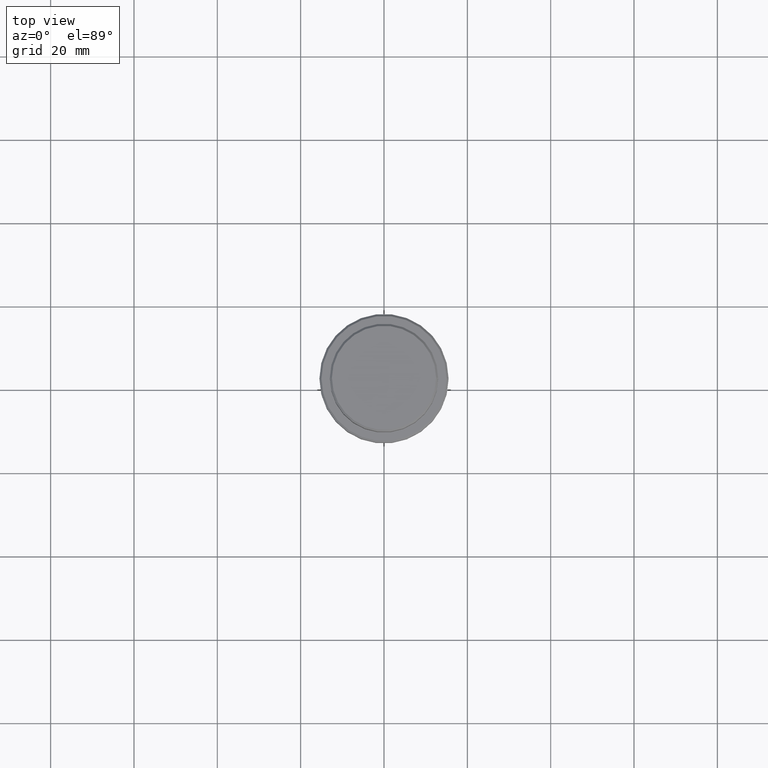
[diagram: clean part render]
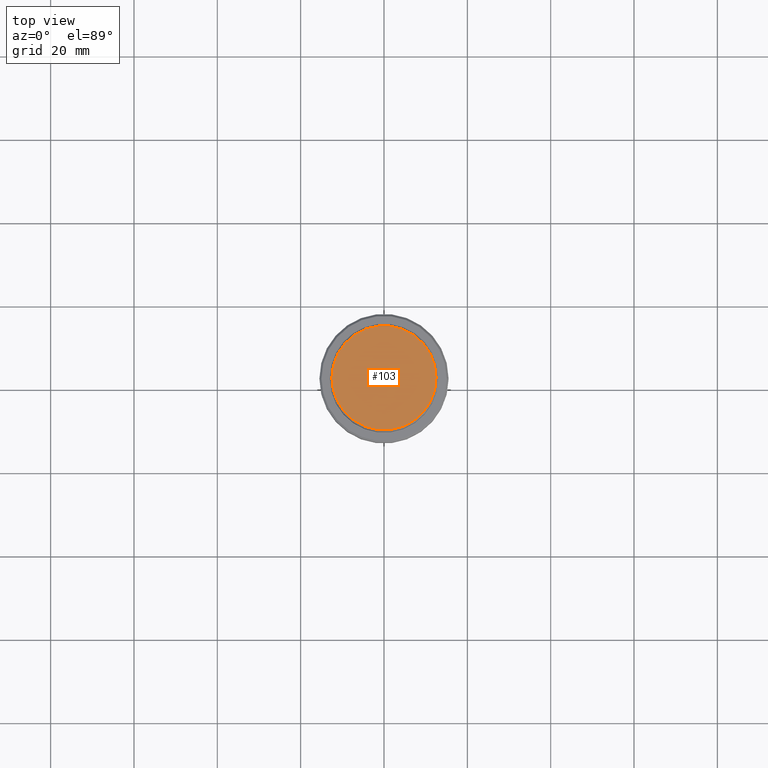
[diagram: same view with one face highlighted and labeled with its STEP entity id]
A machine part, top view. The second image highlights one B-rep face of the part: STEP entity #103.
In plain terms, the highlighted planar face has unit normal (0, -0, 1).
Its self-contained STEP definition (entity closure, byte-faithful):
#84 = PLANE ( 'NONE',  #615 ) ;
#88 = CARTESIAN_POINT ( 'NONE',  ( 0.000000000000000000, 0.000000000000000000, 0.000000000000000000 ) ) ;
#103 = ADVANCED_FACE ( 'NONE', ( #950 ), #84, .T. ) ;
#351 = CARTESIAN_POINT ( 'NONE',  ( -12.50000000000004086, 0.000000000000000000, 0.000000000000000000 ) ) ;
#468 = EDGE_CURVE ( 'NONE', #654, #702, #764, .T. ) ;
#493 = DIRECTION ( 'NONE',  ( 1.000000000000000000, 0.000000000000000000, 0.000000000000000000 ) ) ;
#572 = EDGE_CURVE ( 'NONE', #702, #654, #666, .T. ) ;
#604 = EDGE_LOOP ( 'NONE', ( #677, #722 ) ) ;
#615 = AXIS2_PLACEMENT_3D ( 'NONE', #752, #1410, #1188 ) ;
#626 = DIRECTION ( 'NONE',  ( 1.000000000000000000, 0.000000000000000000, 0.000000000000000000 ) ) ;
#654 = VERTEX_POINT ( 'NONE', #1003 ) ;
#666 = CIRCLE ( 'NONE', #1219, 12.50000000000004086 ) ;
#677 = ORIENTED_EDGE ( 'NONE', *, *, #572, .T. ) ;
#702 = VERTEX_POINT ( 'NONE', #351 ) ;
#722 = ORIENTED_EDGE ( 'NONE', *, *, #468, .T. ) ;
#752 = CARTESIAN_POINT ( 'NONE',  ( 0.000000000000000000, 0.000000000000000000, 0.000000000000000000 ) ) ;
#764 = CIRCLE ( 'NONE', #1397, 12.50000000000004086 ) ;
#950 = FACE_OUTER_BOUND ( 'NONE', #604, .T. ) ;
#1003 = CARTESIAN_POINT ( 'NONE',  ( 12.50000000000004086, 1.561424668912877675E-15, 0.000000000000000000 ) ) ;
#1186 = DIRECTION ( 'NONE',  ( -0.000000000000000000, -0.000000000000000000, 1.000000000000000000 ) ) ;
#1188 = DIRECTION ( 'NONE',  ( 1.000000000000000000, 0.000000000000000000, 0.000000000000000000 ) ) ;
#1219 = AXIS2_PLACEMENT_3D ( 'NONE', #88, #1389, #493 ) ;
#1293 = CARTESIAN_POINT ( 'NONE',  ( 0.000000000000000000, 0.000000000000000000, 0.000000000000000000 ) ) ;
#1389 = DIRECTION ( 'NONE',  ( -0.000000000000000000, -0.000000000000000000, 1.000000000000000000 ) ) ;
#1397 = AXIS2_PLACEMENT_3D ( 'NONE', #1293, #1186, #626 ) ;
#1410 = DIRECTION ( 'NONE',  ( 0.000000000000000000, -0.000000000000000000, 1.000000000000000000 ) ) ;